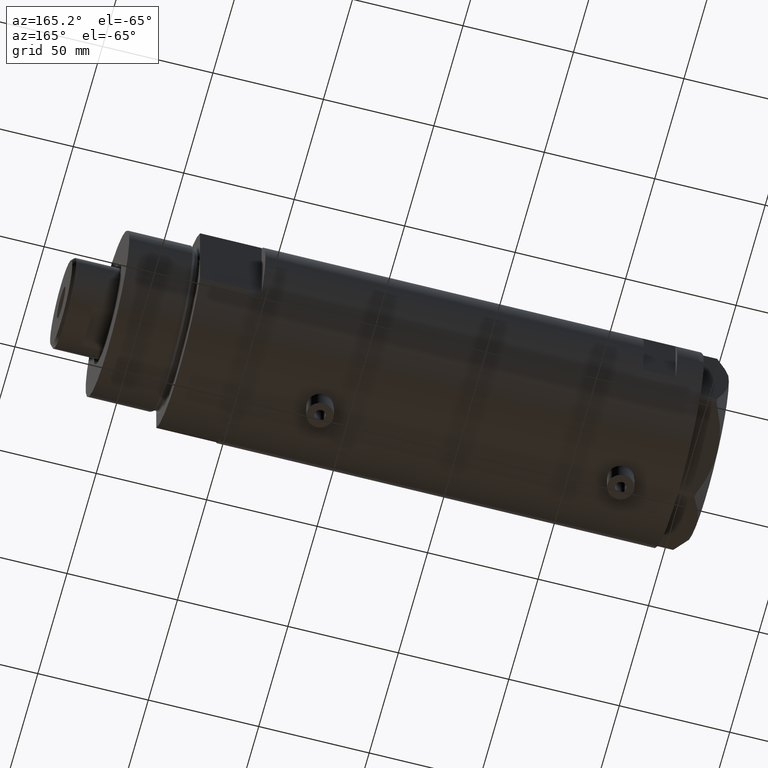
[diagram: clean part render]
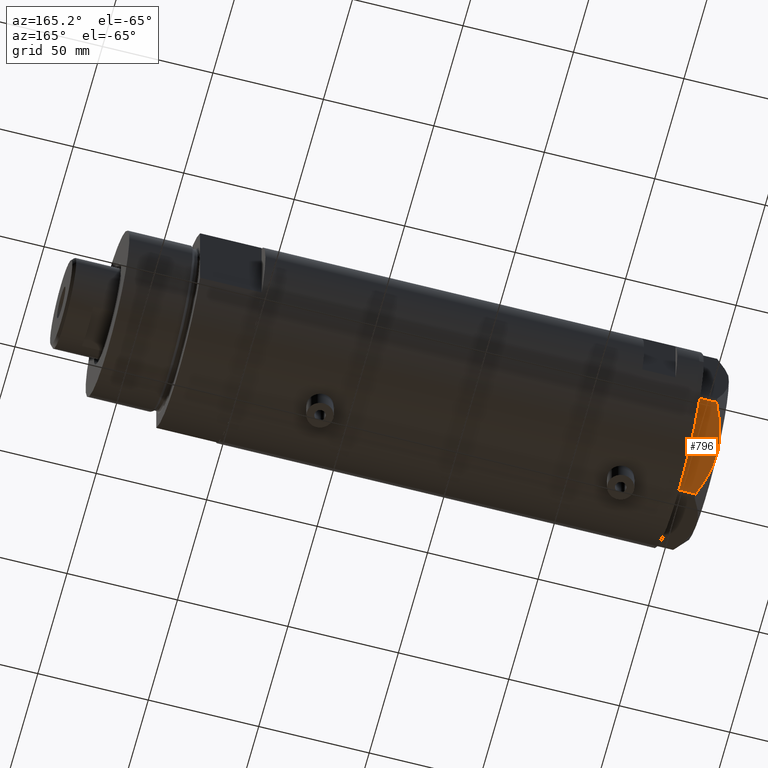
[diagram: same view with one face highlighted and labeled with its STEP entity id]
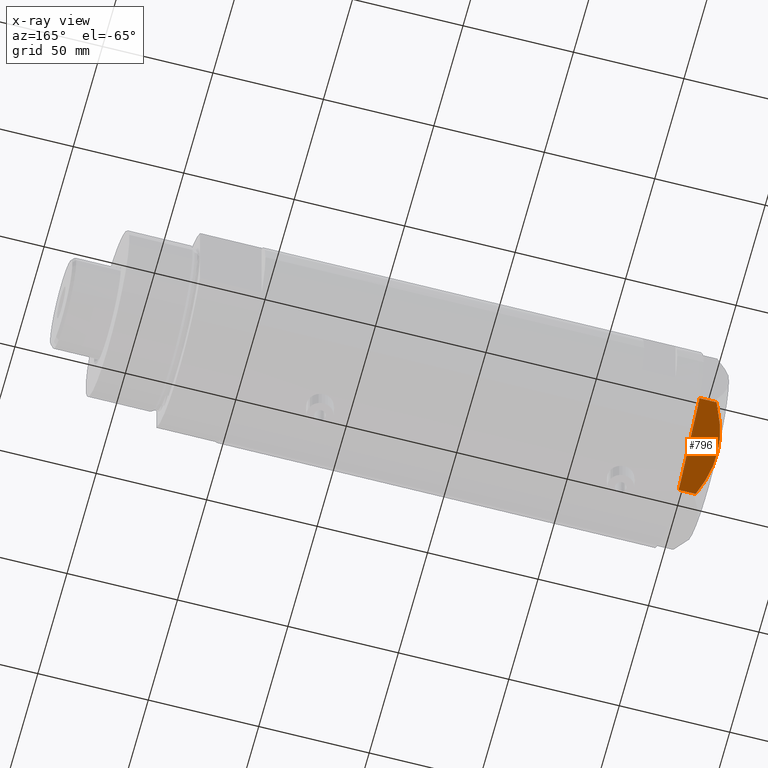
[diagram: x-ray of the same camera — body ghosted, the highlighted face saturated]
A machine part, auxiliary view. The second image highlights one B-rep face of the part: STEP entity #796.
The next image is the same camera in x-ray: the body ghosted, the highlighted face saturated — about 0% of this face is hidden behind the body in this view.
In plain terms, the highlighted planar face has unit normal (0, -0.5, 0.866).
Its self-contained STEP definition (entity closure, byte-faithful):
#129 = EDGE_CURVE ( 'NONE', #1044, #3181, #1387, .T. ) ;
#149 = EDGE_CURVE ( 'NONE', #3089, #1422, #452, .T. ) ;
#159 = CARTESIAN_POINT ( 'NONE',  ( 17.32290914057161046, 33.58855906836029703, 12.99999999999999822 ) ) ;
#176 = CARTESIAN_POINT ( 'NONE',  ( 37.75000000000000000, 21.79497266190837124, 13.00000000000000000 ) ) ;
#238 = CARTESIAN_POINT ( 'NONE',  ( 8.199247025945881617, 38.85610784623463587, 11.04644118613097170 ) ) ;
#283 = CARTESIAN_POINT ( 'NONE',  ( 22.79667224021352112, 30.42828046930179298, 12.73960743196720458 ) ) ;
#303 = PLANE ( 'NONE',  #2510 ) ;
#305 = ORIENTED_EDGE ( 'NONE', *, *, #149, .T. ) ;
#404 = DIRECTION ( 'NONE',  ( 0.000000000000000000, 0.000000000000000000, -1.000000000000000000 ) ) ;
#452 = LINE ( 'NONE', #4139, #2738 ) ;
#528 = CARTESIAN_POINT ( 'NONE',  ( 18.87500000000000000, 32.69245899286255508, 13.00000000000000000 ) ) ;
#586 = CARTESIAN_POINT ( 'NONE',  ( 5.984301592052704066, 40.13490718873321583, 10.17879673963510001 ) ) ;
#618 = CARTESIAN_POINT ( 'NONE',  ( 25.11263918036255305, 29.09115633297248849, 12.35956205105863859 ) ) ;
#712 = ORIENTED_EDGE ( 'NONE', *, *, #2826, .F. ) ;
#715 = ORIENTED_EDGE ( 'NONE', *, *, #4012, .T. ) ;
#771 = DIRECTION ( 'NONE',  ( 0.8660254037844385966, -0.4999999999999999445, 0.000000000000000000 ) ) ;
#796 = ADVANCED_FACE ( 'NONE', ( #1412 ), #303, .F. ) ;
#1004 = LINE ( 'NONE', #2032, #2446 ) ;
#1044 = VERTEX_POINT ( 'NONE', #4164 ) ;
#1057 = CARTESIAN_POINT ( 'NONE',  ( 26.62598697109948631, 28.21742457861299158, 11.98878493998158490 ) ) ;
#1306 = CARTESIAN_POINT ( 'NONE',  ( 2.376799045725944914, 42.21769975495722349, 8.489459328479338041 ) ) ;
#1387 = LINE ( 'NONE', #1812, #2261 ) ;
#1396 = VERTEX_POINT ( 'NONE', #4417 ) ;
#1412 = FACE_OUTER_BOUND ( 'NONE', #1868, .T. ) ;
#1422 = VERTEX_POINT ( 'NONE', #4508 ) ;
#1554 = ORIENTED_EDGE ( 'NONE', *, *, #129, .T. ) ;
#1742 = CARTESIAN_POINT ( 'NONE',  ( 11.20965750620489843, 37.11804654508583212, 12.01242981158388723 ) ) ;
#1753 = CARTESIAN_POINT ( 'NONE',  ( 20.44120046918717293, 31.78821273037242534, 12.96759879420492290 ) ) ;
#1812 = CARTESIAN_POINT ( 'NONE',  ( 0.9699484522385712904, 43.02994532381674020, 13.00000000000000000 ) ) ;
#1868 = EDGE_LOOP ( 'NONE', ( #4242, #305, #715, #1554, #712 ) ) ;
#1875 = CARTESIAN_POINT ( 'NONE',  ( 0.9699484522410141141, 43.02994532381532622, 7.709124142618329678 ) ) ;
#2032 = CARTESIAN_POINT ( 'NONE',  ( 37.75000000000000000, 21.79497266190837124, 0.000000000000000000 ) ) ;
#2065 = EDGE_CURVE ( 'NONE', #3089, #1396, #2376, .T. ) ;
#2261 = VECTOR ( 'NONE', #3319, 1000.000000000000000 ) ;
#2356 = DIRECTION ( 'NONE',  ( -0.5000000000000000000, -0.8660254037844387076, 0.000000000000000000 ) ) ;
#2365 = B_SPLINE_CURVE_WITH_KNOTS ( 'NONE', 3,
 ( #528, #159, #3148, #2646, #1742, #3220, #238, #3615, #586, #3967, #1306, #4702 ),
 .UNSPECIFIED., .F., .F.,
 ( 4, 2, 2, 2, 2, 4 ),
 ( 0.02259271946349905927, 0.02789559809390696268, 0.03319847672431486263, 0.03584991603951881434, 0.03850135535472275911, 0.04380423398513066252 ),
 .UNSPECIFIED. ) ;
#2376 = B_SPLINE_CURVE_WITH_KNOTS ( 'NONE', 3,
 ( #3258, #3204, #4787, #1057, #618, #283, #4050, #1753, #2861, #4713 ),
 .UNSPECIFIED., .F., .F.,
 ( 4, 2, 2, 2, 4 ),
 ( 0.001231023567492484571, 0.01191187151549577897, 0.01725229548949741912, 0.01992250747649823919, 0.02259271946349905927 ),
 .UNSPECIFIED. ) ;
#2446 = VECTOR ( 'NONE', #2825, 1000.000000000000227 ) ;
#2510 = AXIS2_PLACEMENT_3D ( 'NONE', #176, #2356, #771 ) ;
#2646 = CARTESIAN_POINT ( 'NONE',  ( 12.72654504259190666, 36.24227111762240128, 12.37795492145974308 ) ) ;
#2738 = VECTOR ( 'NONE', #404, 1000.000000000000000 ) ;
#2825 = DIRECTION ( 'NONE',  ( -0.8660254037844385966, 0.5000000000000000000, 0.000000000000000000 ) ) ;
#2826 = EDGE_CURVE ( 'NONE', #1396, #3181, #2365, .T. ) ;
#2861 = CARTESIAN_POINT ( 'NONE',  ( 19.65653997226999294, 32.24123667949002936, 13.00000000000000355 ) ) ;
#3089 = VERTEX_POINT ( 'NONE', #4184 ) ;
#3148 = CARTESIAN_POINT ( 'NONE',  ( 15.78316139395979611, 34.47753284435075471, 12.87183830165163556 ) ) ;
#3181 = VERTEX_POINT ( 'NONE', #1875 ) ;
#3204 = CARTESIAN_POINT ( 'NONE',  ( 33.96695484073207894, 23.97911480296822262, 9.269459228581801824 ) ) ;
#3220 = CARTESIAN_POINT ( 'NONE',  ( 8.949419886524690781, 38.42299534324072141, 11.30742055474510366 ) ) ;
#3258 = CARTESIAN_POINT ( 'NONE',  ( 36.78005154776156616, 22.35497266190829180, 7.709124142616896158 ) ) ;
#3319 = DIRECTION ( 'NONE',  ( 0.000000000000000000, 0.000000000000000000, 1.000000000000000000 ) ) ;
#3615 = CARTESIAN_POINT ( 'NONE',  ( 6.717640657182761821, 39.71151368207312515, 10.48240969891332064 ) ) ;
#3967 = CARTESIAN_POINT ( 'NONE',  ( 3.804046002726260589, 41.39367834013302883, 9.210778219601426287 ) ) ;
#4012 = EDGE_CURVE ( 'NONE', #1422, #1044, #1004, .T. ) ;
#4050 = CARTESIAN_POINT ( 'NONE',  ( 22.01686507582220642, 30.87850234557911833, 12.83692902789790224 ) ) ;
#4139 = CARTESIAN_POINT ( 'NONE',  ( 36.78005154776142405, 22.35497266190837706, 13.00000000000000000 ) ) ;
#4164 = CARTESIAN_POINT ( 'NONE',  ( 0.9699484522385850571, 43.02994532381674020, 0.000000000000000000 ) ) ;
#4184 = CARTESIAN_POINT ( 'NONE',  ( 36.78005154776156616, 22.35497266190829180, 7.709124142616896158 ) ) ;
#4242 = ORIENTED_EDGE ( 'NONE', *, *, #2065, .F. ) ;
#4417 = CARTESIAN_POINT ( 'NONE',  ( 18.87500000000000000, 32.69245899286255508, 13.00000000000000000 ) ) ;
#4508 = CARTESIAN_POINT ( 'NONE',  ( 36.78005154776142405, 22.35497266190837706, 0.000000000000000000 ) ) ;
#4702 = CARTESIAN_POINT ( 'NONE',  ( 0.9699484522410141141, 43.02994532381532622, 7.709124142618329678 ) ) ;
#4713 = CARTESIAN_POINT ( 'NONE',  ( 18.87500000000000000, 32.69245899286255508, 13.00000000000000000 ) ) ;
#4787 = CARTESIAN_POINT ( 'NONE',  ( 31.09047021924040877, 25.63985397350625206, 10.58681170757598800 ) ) ;